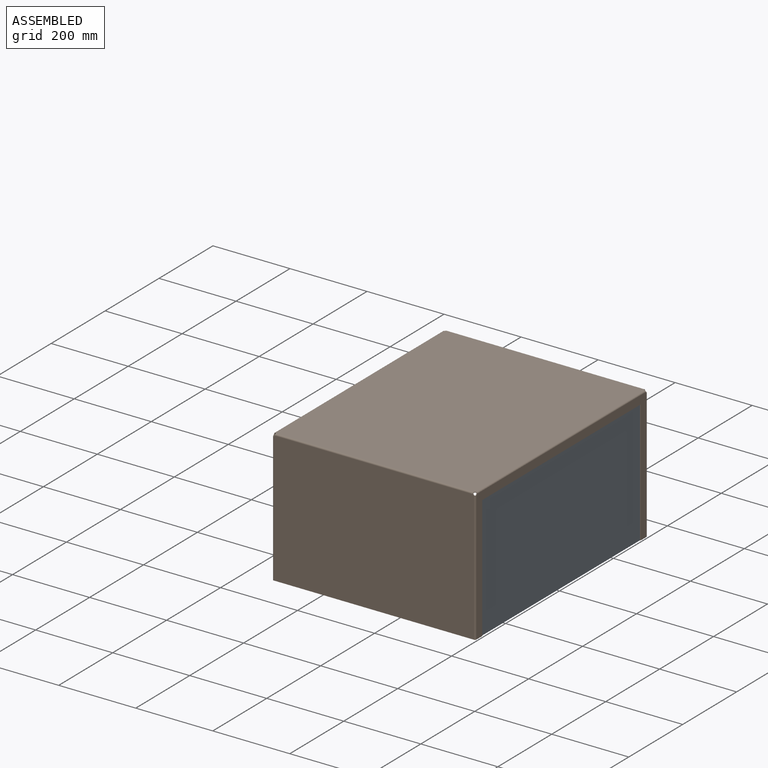
[diagram: assembled view]
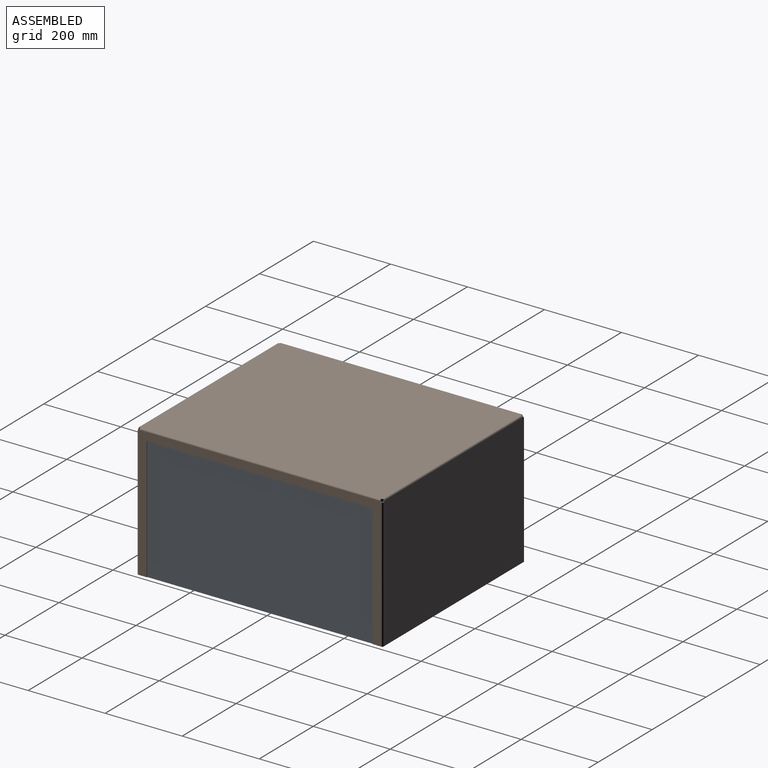
[diagram: assembled view, second angle]
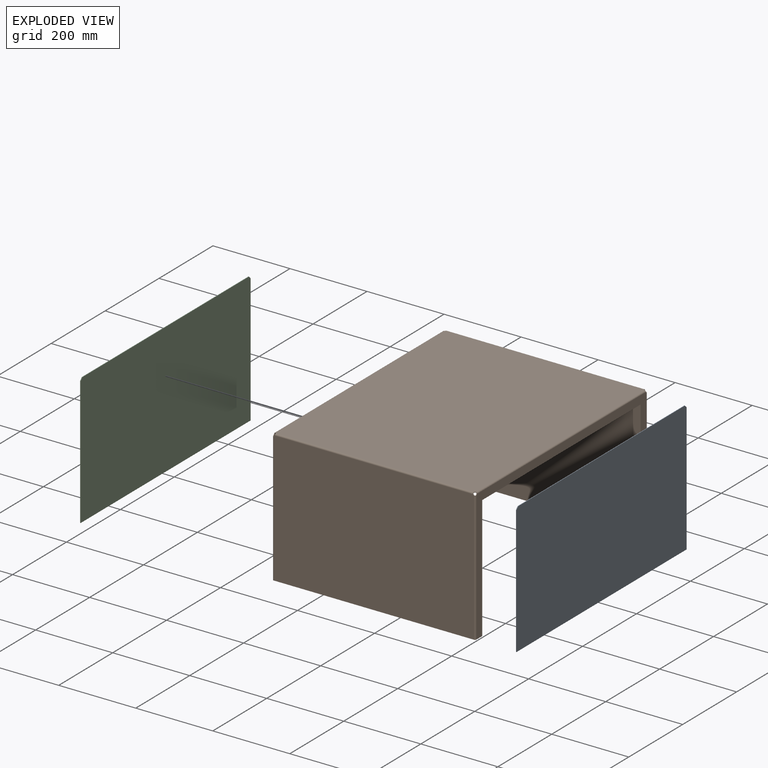
[diagram: exploded view]
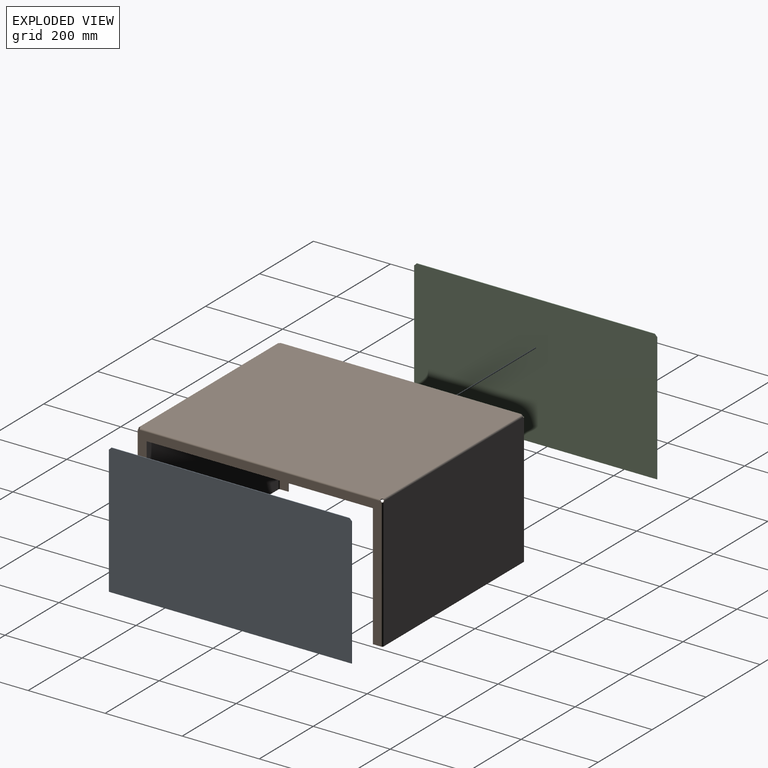
[diagram: exploded view, second angle]
ASSEMBLY  parts=3 mates=3
PART A: 8 faces, bbox 1.6x630.2x339.7 mm
  f0: plane 617.54x1.6mm, normal (0,0,1), area 988.2mm2, adj f4,f5,f6,f7
  f1: plane 333.38x1.6mm, normal (0,-1,0), area 533.5mm2, adj f2,f4,f5,f7
  f2: plane 630.24x1.6mm, normal (0,0,-1), area 1008.5mm2, adj f1,f3,f4,f5
  f3: plane 333.38x1.6mm, normal (0,1,0), area 533.5mm2, adj f2,f4,f5,f6
  f4: plane 630.24x339.73mm, normal (1,0,0), area 214067.1mm2, adj f0,f1,f2,f3,f6,f7
  f5: plane 630.24x339.73mm, normal (-1,0,0), area 214067.1mm2, adj f0,f1,f2,f3,f6,f7
  f6: plane 6.35x6.35mm, normal (0,0.71,0.71), area 14.4mm2, adj f0,f3,f4,f5
  f7: plane 6.35x6.35mm, normal (0,-0.71,0.71), area 14.4mm2, adj f0,f1,f4,f5
PART B: 86 faces, bbox 527.1x638.2x344.5 mm
  f0: plane 519.3x340.61mm, normal (0,-1,0), area 176876.7mm2, adj f1,f3,f4,f44,f74,f84
  f1: plane 519.3x1.59mm, normal (0,0,-1), area 824.4mm2, adj f0,f2,f72,f82
  f2: plane 519.3x340.61mm, normal (0,1,0), area 176876.7mm2, adj f1,f3,f4,f45,f75,f85
  f3: cylinder r=5.02mm len=2.07mm, axis (0,-1,0), area 4.7mm2, adj f0,f2,f42,f73
  f4: cylinder r=5.02mm len=2.07mm, axis (0,-1,0), area 4.7mm2, adj f0,f2,f43,f83
  f5: plane 20.34x20.34mm, normal (0,-0.71,-0.71), area 45.7mm2, adj f7,f8,f9,f10
  f6: plane 20.34x20.34mm, normal (0,0.71,-0.71), area 45.7mm2, adj f7,f8,f9,f11
  f7: plane 628.03x21.53mm, normal (1,0,0), area 13104.2mm2, adj f5,f6,f8,f10,f11,f14
  f8: plane 587.34x1.59mm, normal (0,0,-1), area 932.4mm2, adj f5,f6,f7,f9
  f9: plane 628.03x21.53mm, normal (-1,0,0), area 13104.2mm2, adj f5,f6,f8,f10,f11,f15
  f10: cylinder r=5.02mm len=1.59mm, axis (1,0,0), area 2.3mm2, adj f5,f7,f9,f13
  f11: cylinder r=5.02mm len=1.59mm, axis (1,0,0), area 2.3mm2, adj f6,f7,f9,f12
  f12: bspline ~3.87x3.87mm, area 8mm2, adj f11,f14,f15,f21
  f13: bspline ~3.87x3.87mm, area 8mm2, adj f10,f14,f15,f18
  f14: cylinder r=3.87mm len=626.28mm, axis (0,1,0), area 3805.8mm2, adj f7,f12,f13,f16
  f15: cylinder r=2.29mm len=626.28mm, axis (0,1,0), area 2246mm2, adj f9,f12,f13,f17
  f16: plane 630.43x519.3mm, normal (0,0,1), area 327372.8mm2, adj f14,f18,f19,f20,f21,f29,f40,f44
  f17: plane 630.43x519.3mm, normal (0,0,-1), area 327372.8mm2, adj f15,f18,f19,f20,f21,f30,f41,f45
  f18: cylinder r=5.02mm len=2.07mm, axis (0,0,1), area 4.7mm2, adj f13,f16,f17,f42
  f19: cylinder r=5.02mm len=2.07mm, axis (0,0,1), area 4.7mm2, adj f16,f17,f39,f43
  f20: cylinder r=5.02mm len=2.07mm, axis (0,0,1), area 4.7mm2, adj f16,f17,f28,f38
  f21: cylinder r=5.02mm len=2.07mm, axis (0,0,1), area 4.7mm2, adj f12,f16,f17,f27
  f22: plane 519.3x340.61mm, normal (0,1,0), area 176876.7mm2, adj f23,f25,f26,f29,f54,f64
  f23: plane 519.3x1.59mm, normal (0,0,-1), area 824.4mm2, adj f22,f24,f52,f62
  f24: plane 519.3x340.61mm, normal (0,-1,0), area 176876.7mm2, adj f23,f25,f26,f30,f55,f65
  f25: cylinder r=5.02mm len=2.07mm, axis (0,1,0), area 4.7mm2, adj f22,f24,f28,f63
  f26: cylinder r=5.02mm len=2.07mm, axis (0,1,0), area 4.7mm2, adj f22,f24,f27,f53
  f27: bspline ~3.87x3.87mm, area 8mm2, adj f21,f26,f29,f30
  f28: bspline ~3.87x3.87mm, area 8mm2, adj f20,f25,f29,f30
  f29: cylinder r=3.87mm len=515.16mm, axis (1,0,0), area 3129.6mm2, adj f16,f22,f27,f28
  f30: cylinder r=2.29mm len=515.16mm, axis (1,0,0), area 1847mm2, adj f17,f24,f27,f28
  f31: plane 20.34x20.34mm, normal (0,0.71,-0.71), area 45.7mm2, adj f33,f34,f35,f36
  f32: plane 20.34x20.34mm, normal (0,-0.71,-0.71), area 45.7mm2, adj f33,f34,f35,f37
  f33: plane 628.03x21.53mm, normal (-1,0,0), area 13104.2mm2, adj f31,f32,f34,f36,f37,f40
  f34: plane 587.34x1.59mm, normal (0,0,-1), area 932.4mm2, adj f31,f32,f33,f35
  f35: plane 628.03x21.53mm, normal (1,0,0), area 13104.2mm2, adj f31,f32,f34,f36,f37,f41
  f36: cylinder r=5.02mm len=1.59mm, axis (-1,0,0), area 2.3mm2, adj f31,f33,f35,f38
  f37: cylinder r=5.02mm len=1.59mm, axis (-1,0,0), area 2.3mm2, adj f32,f33,f35,f39
  f38: bspline ~3.87x3.87mm, area 8mm2, adj f20,f36,f40,f41
  f39: bspline ~3.87x3.87mm, area 8mm2, adj f19,f37,f40,f41
  f40: cylinder r=3.87mm len=626.28mm, axis (0,1,0), area 3805.8mm2, adj f16,f33,f38,f39
  f41: cylinder r=2.29mm len=626.28mm, axis (0,1,0), area 2246mm2, adj f17,f35,f38,f39
  f42: bspline ~3.87x3.87mm, area 8mm2, adj f3,f18,f44,f45
  f43: bspline ~3.87x3.87mm, area 8mm2, adj f4,f19,f44,f45
  f44: cylinder r=3.87mm len=515.16mm, axis (1,0,0), area 3129.6mm2, adj f0,f16,f42,f43
  f45: cylinder r=2.29mm len=515.16mm, axis (1,0,0), area 1847mm2, adj f2,f17,f42,f43
  f46: plane 20.34x20.34mm, normal (0,-0.71,0.71), area 45.7mm2, adj f47,f48,f50,f51
  f47: plane 339.41x21.53mm, normal (1,0,0), area 7098.9mm2, adj f46,f48,f49,f51,f54
  f48: plane 319.07x1.59mm, normal (0,-1,0), area 506.5mm2, adj f46,f47,f49,f50
  f49: plane 21.53x1.59mm, normal (0,0,-1), area 34.2mm2, adj f47,f48,f50,f52
  f50: plane 339.41x21.53mm, normal (-1,0,0), area 7098.9mm2, adj f46,f48,f49,f51,f55
  f51: cylinder r=5.02mm len=1.59mm, axis (1,0,0), area 2.3mm2, adj f46,f47,f50,f53
  f52: plane 3.87x3.87mm, normal (0,0,-1), area 7.7mm2, adj f23,f49,f54,f55
  f53: bspline ~3.87x3.87mm, area 8mm2, adj f26,f51,f54,f55
  f54: cylinder r=3.87mm len=338.54mm, axis (0,0,-1), area 2057.4mm2, adj f22,f47,f52,f53
  f55: cylinder r=2.29mm len=338.54mm, axis (0,0,-1), area 1214.2mm2, adj f24,f50,f52,f53
  f56: plane 20.34x20.34mm, normal (0,-0.71,0.71), area 45.7mm2, adj f57,f58,f60,f61
  f57: plane 339.41x21.53mm, normal (-1,0,0), area 7098.9mm2, adj f56,f58,f59,f61,f64
  f58: plane 319.07x1.59mm, normal (0,-1,0), area 506.5mm2, adj f56,f57,f59,f60
  f59: plane 21.53x1.59mm, normal (0,0,-1), area 34.2mm2, adj f57,f58,f60,f62
  f60: plane 339.41x21.53mm, normal (1,0,0), area 7098.9mm2, adj f56,f58,f59,f61,f65
  f61: cylinder r=5.02mm len=1.59mm, axis (-1,0,0), area 2.3mm2, adj f56,f57,f60,f63
  f62: plane 3.87x3.87mm, normal (0,0,-1), area 7.7mm2, adj f23,f59,f64,f65
  f63: bspline ~3.87x3.87mm, area 8mm2, adj f25,f61,f64,f65
  f64: cylinder r=3.87mm len=338.54mm, axis (0,0,-1), area 2057.4mm2, adj f22,f57,f62,f63
  f65: cylinder r=2.29mm len=338.54mm, axis (0,0,-1), area 1214.2mm2, adj f24,f60,f62,f63
  f66: plane 20.34x20.34mm, normal (0,0.71,0.71), area 45.7mm2, adj f67,f68,f70,f71
  f67: plane 339.41x21.53mm, normal (1,0,0), area 7098.9mm2, adj f66,f68,f69,f71,f74
  f68: plane 319.07x1.59mm, normal (0,1,0), area 506.5mm2, adj f66,f67,f69,f70
  f69: plane 21.53x1.59mm, normal (0,0,-1), area 34.2mm2, adj f67,f68,f70,f72
  f70: plane 339.41x21.53mm, normal (-1,0,0), area 7098.9mm2, adj f66,f68,f69,f71,f75
  f71: cylinder r=5.02mm len=1.59mm, axis (1,0,0), area 2.3mm2, adj f66,f67,f70,f73
  f72: plane 3.87x3.87mm, normal (0,0,-1), area 7.7mm2, adj f1,f69,f74,f75
  f73: bspline ~3.87x3.87mm, area 8mm2, adj f3,f71,f74,f75
  f74: cylinder r=3.87mm len=338.54mm, axis (0,0,1), area 2057.4mm2, adj f0,f67,f72,f73
  f75: cylinder r=2.29mm len=338.54mm, axis (0,0,1), area 1214.2mm2, adj f2,f70,f72,f73
  f76: plane 20.34x20.34mm, normal (0,0.71,0.71), area 45.7mm2, adj f77,f78,f80,f81
  f77: plane 339.41x21.53mm, normal (-1,0,0), area 7098.9mm2, adj f76,f78,f79,f81,f84
  f78: plane 319.07x1.59mm, normal (0,1,0), area 506.5mm2, adj f76,f77,f79,f80
  f79: plane 21.53x1.59mm, normal (0,0,-1), area 34.2mm2, adj f77,f78,f80,f82
  f80: plane 339.41x21.53mm, normal (1,0,0), area 7098.9mm2, adj f76,f78,f79,f81,f85
  f81: cylinder r=5.02mm len=1.59mm, axis (-1,0,0), area 2.3mm2, adj f76,f77,f80,f83
  f82: plane 3.87x3.87mm, normal (0,0,-1), area 7.7mm2, adj f1,f79,f84,f85
  f83: bspline ~3.87x3.87mm, area 8mm2, adj f4,f81,f84,f85
  f84: cylinder r=3.87mm len=338.54mm, axis (0,0,1), area 2057.4mm2, adj f0,f77,f82,f83
  f85: cylinder r=2.29mm len=338.54mm, axis (0,0,1), area 1214.2mm2, adj f2,f80,f82,f83
PART C: same geometry as A
PLACE A t=(209.07,187.46,-7.87)mm
PLACE B t=(-51.27,189.84,-4.7)mm
PLACE C t=(-313.22,187.46,-7.87)mm
MATE planar A.f2 <-> B.f23  axis (0,0,-1) through (209.87,502.58,-347.6)mm
MATE planar A.f4 <-> B.f50  axis (1,0,0) through (210.67,187.46,-177.77)mm
MATE planar B.f2 <-> A.f1  axis (0,1,0) through (208.38,-127.66,-347.6)mm
